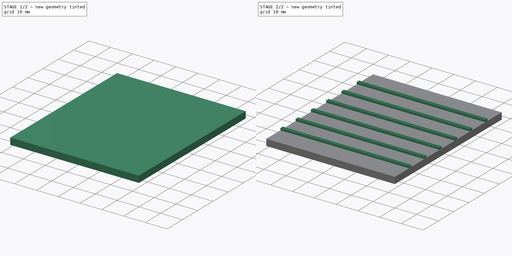
[diagram: build sequence overview — one tinted view per stage of 2, left to right]
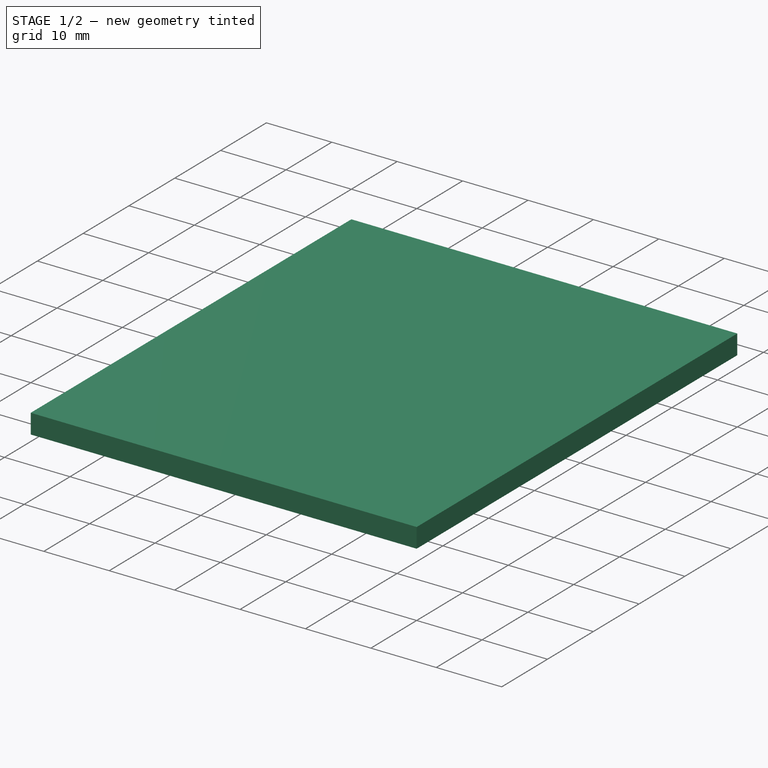
[diagram: stage 1 of 2 — iso view after this stage's code; geometry added in this stage tinted green]
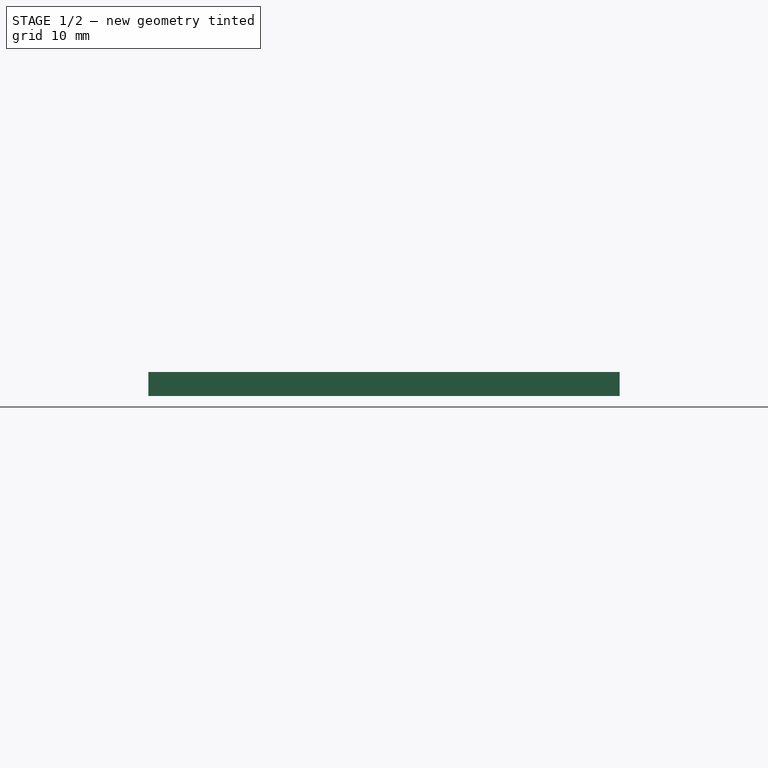
[diagram: stage 1 of 2 — front view after this stage's code; geometry added in this stage tinted green]
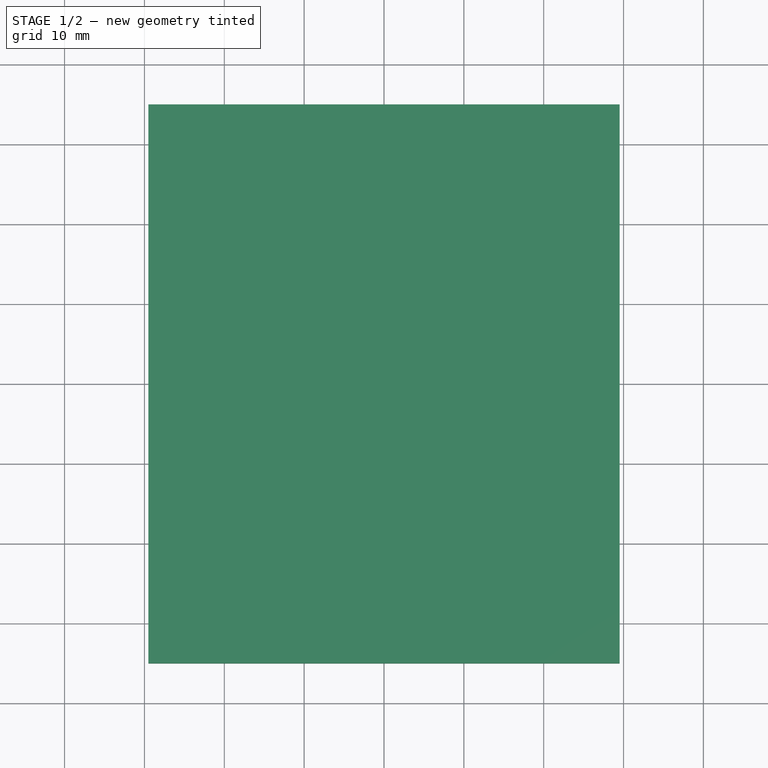
[diagram: stage 1 of 2 — top view after this stage's code; geometry added in this stage tinted green]
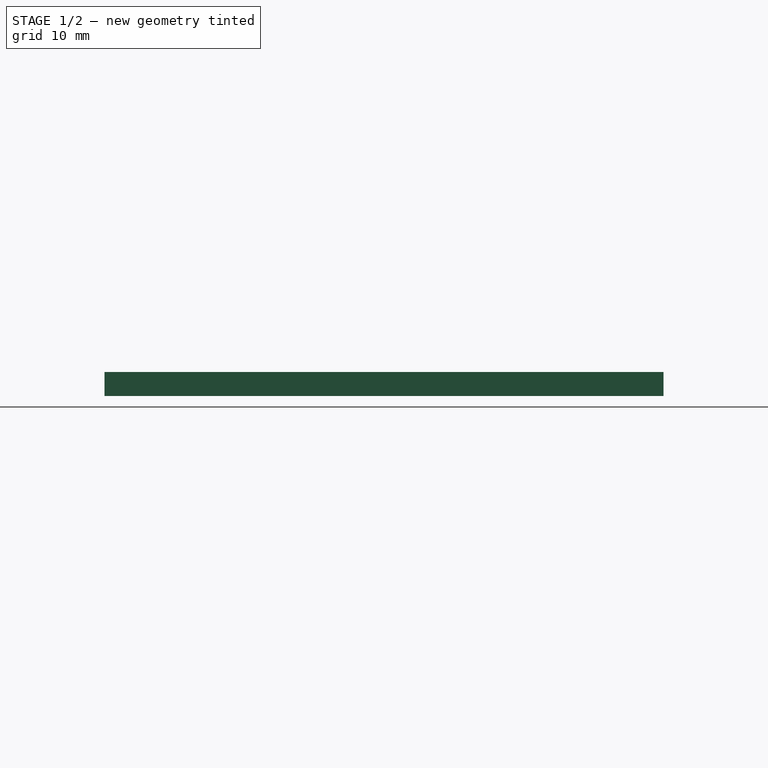
[diagram: stage 1 of 2 — right view after this stage's code; geometry added in this stage tinted green]
FCSTD DOCUMENT  (FreeCAD 0.20R29603 (Git))
Label: InterfaceBottom
License: All rights reserved
LicenseURL: http://en.wikipedia.org/wiki/All_rights_reserved
objects: Sketcher::SketchObject×2, PartDesign::Pad×2, PartDesign::Body×1
note: 7 computed .brp shape members not serialized (recipe doc carries the construction recipe); baked Part::Feature solids carry a one-line shape summary decoded from their .brp

FEATURE [Sketcher::SketchObject] Sketch
  FullyConstrained = true
  MapMode = 5
  Support = -> [XY_Plane]
  sketch-geometry (5):
    g0: LineSegment StartX=-29.5 StartY=35 StartZ=0 EndX=-29.5 EndY=-35 EndZ=0
    g1: LineSegment StartX=-29.5 StartY=-35 StartZ=0 EndX=29.5 EndY=-35 EndZ=0
    g2: LineSegment StartX=29.5 StartY=-35 StartZ=0 EndX=29.5 EndY=35 EndZ=0
    g3: LineSegment StartX=29.5 StartY=35 StartZ=0 EndX=-29.5 EndY=35 EndZ=0
    g4: GeomPoint X=0 Y=0 Z=0
  constraints (12):
    c: Coincident(g0,g1)
    c: Coincident(g1,g2)
    c: Coincident(g2,g3)
    c: Coincident(g3,g0)
    c: Horizontal(g1)
    c: Horizontal(g3)
    c: Vertical(g0)
    c: Vertical(g2)
    c: Symmetric(g1,g0,g4)
    c: Coincident(g4,g-1)
    c: DistanceX(g3,g3) = 59
    c: DistanceY(g2,g2) = 70
FEATURE [PartDesign::Pad] Pad
  Direction = (0,0,1)
  Length = 3
  Length2 = 10
  Profile = -> Sketch
  ReferenceAxis = -> Sketch [N_Axis]
  Type = 0
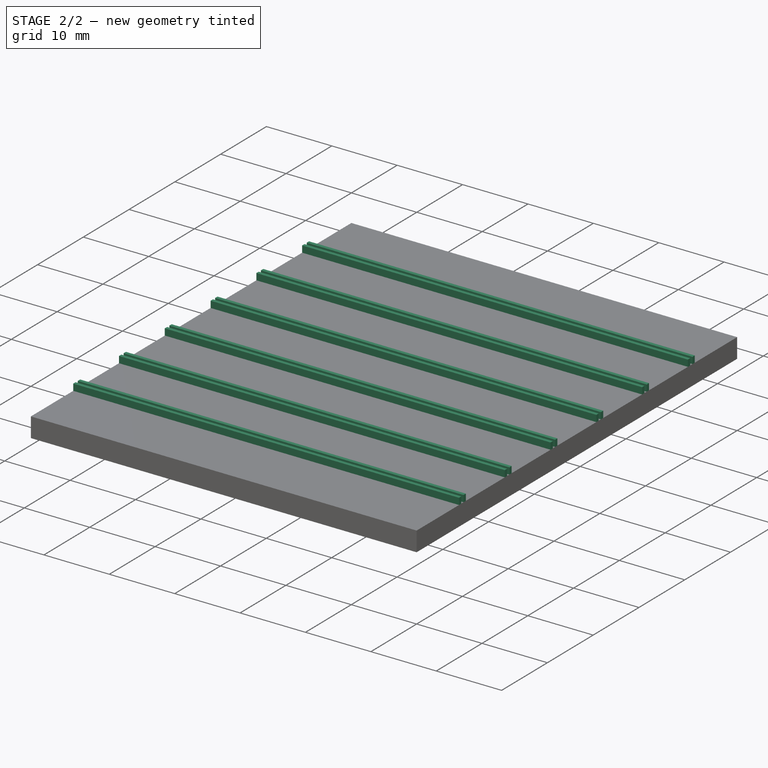
[diagram: stage 2 of 2 — iso view after this stage's code; geometry added in this stage tinted green]
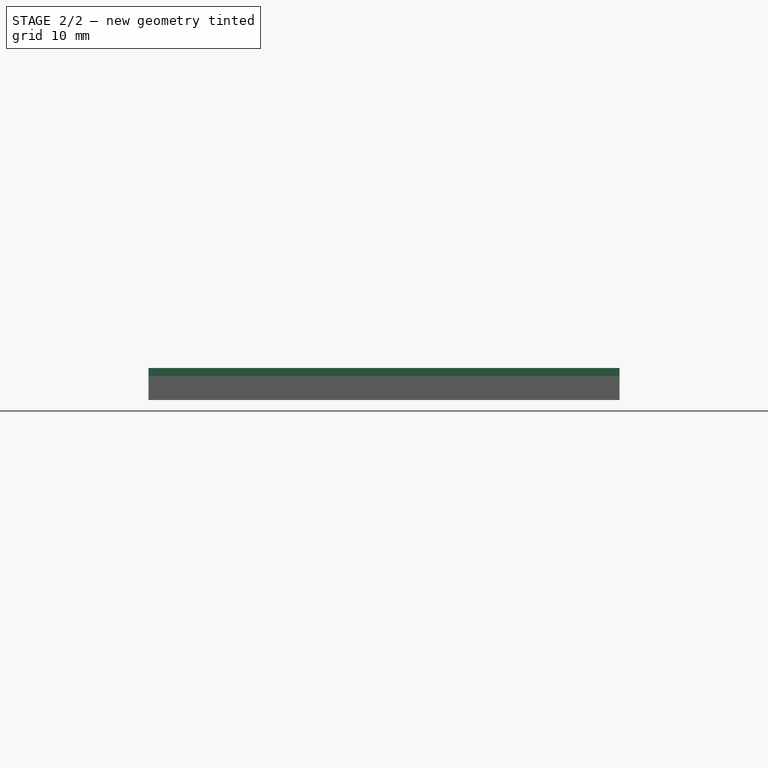
[diagram: stage 2 of 2 — front view after this stage's code; geometry added in this stage tinted green]
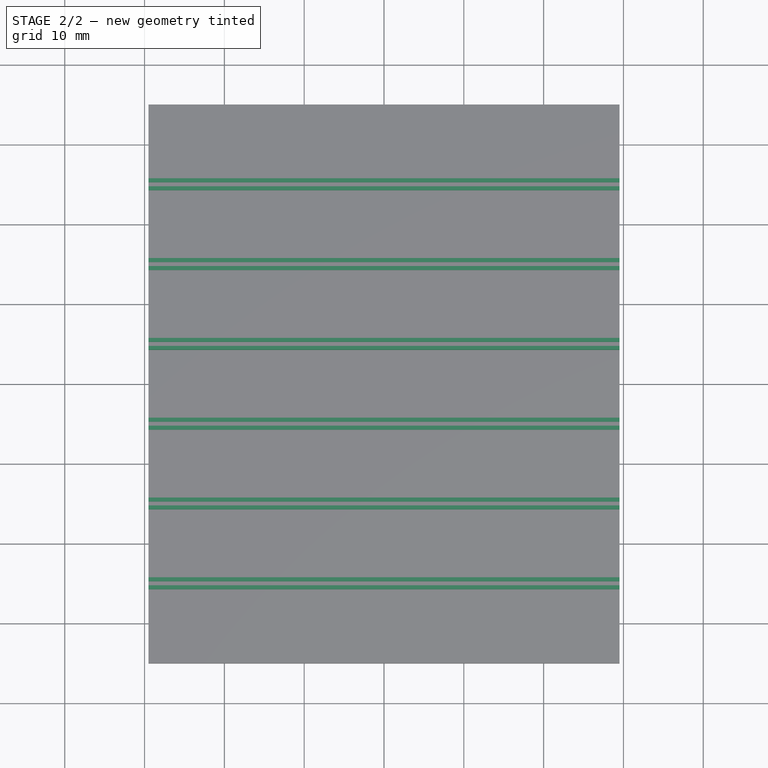
[diagram: stage 2 of 2 — top view after this stage's code; geometry added in this stage tinted green]
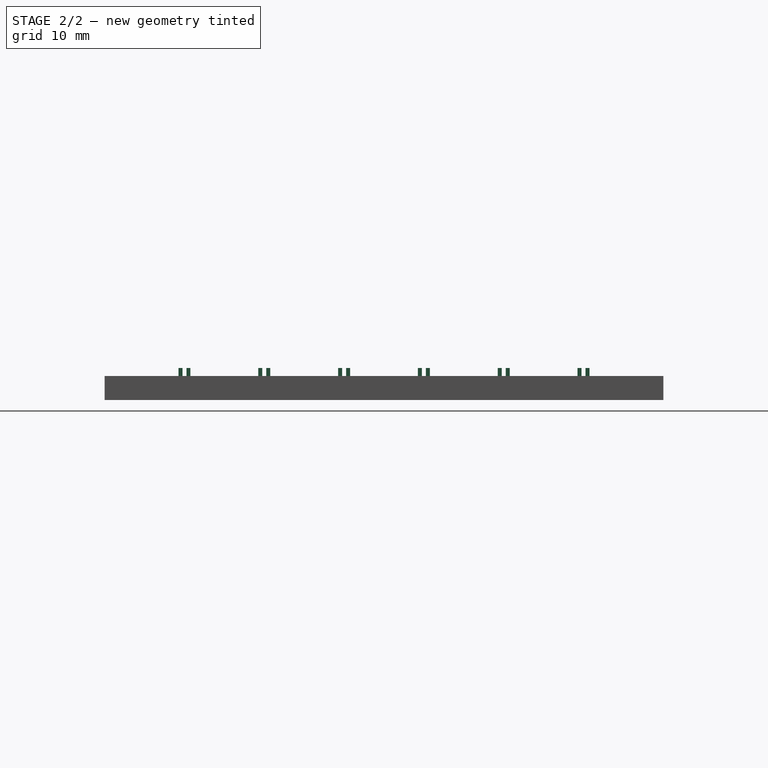
[diagram: stage 2 of 2 — right view after this stage's code; geometry added in this stage tinted green]
FEATURE [Sketcher::SketchObject] Sketch001
  FullyConstrained = true
  MapMode = 5
  Placement = pos=(0,0,3) rot=(0,0,1;0rad)
  Support = -> [Pad]
  sketch-geometry (56):
    g0: LineSegment StartX=29.5 StartY=-25.75 StartZ=0 EndX=-29.5 EndY=-25.75 EndZ=0
    g1: LineSegment StartX=-29.5 StartY=-25.75 StartZ=0 EndX=-29.5 EndY=-25.25 EndZ=0
    g2: LineSegment StartX=-29.5 StartY=-25.25 StartZ=0 EndX=29.5 EndY=-25.25 EndZ=0
    g3: LineSegment StartX=29.5 StartY=-25.25 StartZ=0 EndX=29.5 EndY=-25.75 EndZ=0
    g4: LineSegment StartX=-29.5 StartY=-24.75 StartZ=0 EndX=29.5 EndY=-24.75 EndZ=0
    g5: LineSegment StartX=29.5 StartY=-24.75 StartZ=0 EndX=29.5 EndY=-24.25 EndZ=0
    g6: LineSegment StartX=29.5 StartY=-24.25 StartZ=0 EndX=-29.5 EndY=-24.25 EndZ=0
    g7: LineSegment StartX=-29.5 StartY=-24.25 StartZ=0 EndX=-29.5 EndY=-24.75 EndZ=0
    g8: LineSegment StartX=-29.5 StartY=35 StartZ=0 EndX=-29.5 EndY=-35 EndZ=0
    g9: LineSegment StartX=29.5 StartY=35 StartZ=0 EndX=29.5 EndY=-35 EndZ=0
    g10: LineSegment StartX=-29.5 StartY=-25 StartZ=0 EndX=29.5 EndY=-25 EndZ=0
    g11: LineSegment StartX=-29.5 StartY=-15.75 StartZ=0 EndX=-29.5 EndY=-15.25 EndZ=0
    g12: LineSegment StartX=-29.5 StartY=-15.25 StartZ=0 EndX=29.5 EndY=-15.25 EndZ=0
    g13: LineSegment StartX=29.5 StartY=-15.25 StartZ=0 EndX=29.5 EndY=-15.75 EndZ=0
    g14: LineSegment StartX=-29.5 StartY=-14.75 StartZ=0 EndX=29.5 EndY=-14.75 EndZ=0
    g15: LineSegment StartX=29.5 StartY=-14.75 StartZ=0 EndX=29.5 EndY=-14.25 EndZ=0
    g16: LineSegment StartX=29.5 StartY=-14.25 StartZ=0 EndX=-29.5 EndY=-14.25 EndZ=0
    g17: LineSegment StartX=-29.5 StartY=-14.25 StartZ=0 EndX=-29.5 EndY=-14.75 EndZ=0
    g18: LineSegment StartX=-29.5 StartY=-15 StartZ=0 EndX=29.5 EndY=-15 EndZ=0
    g19: LineSegment StartX=29.5 StartY=-5.75 StartZ=0 EndX=-29.5 EndY=-5.75 EndZ=0
    g20: LineSegment StartX=-29.5 StartY=-5.75 StartZ=0 EndX=-29.5 EndY=-5.25 EndZ=0
    g21: LineSegment StartX=-29.5 StartY=-5.25 StartZ=0 EndX=29.5 EndY=-5.25 EndZ=0
    g22: LineSegment StartX=29.5 StartY=-5.25 StartZ=0 EndX=29.5 EndY=-5.75 EndZ=0
    g23: LineSegment StartX=-29.5 StartY=-4.75 StartZ=0 EndX=29.5 EndY=-4.75 EndZ=0
    g24: LineSegment StartX=29.5 StartY=-4.75 StartZ=0 EndX=29.5 EndY=-4.25 EndZ=0
    g25: LineSegment StartX=29.5 StartY=-4.25 StartZ=0 EndX=-29.5 EndY=-4.25 EndZ=0
    g26: LineSegment StartX=-29.5 StartY=-4.25 StartZ=0 EndX=-29.5 EndY=-4.75 EndZ=0
    g27: LineSegment StartX=-29.5 StartY=-5 StartZ=0 EndX=29.5 EndY=-5 EndZ=0
    g28: LineSegment StartX=-29.5 StartY=-15.75 StartZ=0 EndX=29.5 EndY=-15.75 EndZ=0
    g29: LineSegment StartX=29.5 StartY=4.25 StartZ=0 EndX=-29.5 EndY=4.25 EndZ=0
    g30: LineSegment StartX=-29.5 StartY=4.25 StartZ=0 EndX=-29.5 EndY=4.75 EndZ=0
    g31: LineSegment StartX=-29.5 StartY=4.75 StartZ=0 EndX=29.5 EndY=4.75 EndZ=0
    g32: LineSegment StartX=29.5 StartY=4.75 StartZ=0 EndX=29.5 EndY=4.25 EndZ=0
    g33: LineSegment StartX=-29.5 StartY=5.25 StartZ=0 EndX=29.5 EndY=5.25 EndZ=0
    g34: LineSegment StartX=29.5 StartY=5.25 StartZ=0 EndX=29.5 EndY=5.75 EndZ=0
    g35: LineSegment StartX=29.5 StartY=5.75 StartZ=0 EndX=-29.5 EndY=5.75 EndZ=0
    g36: LineSegment StartX=-29.5 StartY=5.75 StartZ=0 EndX=-29.5 EndY=5.25 EndZ=0
    g37: LineSegment StartX=-29.5 StartY=5 StartZ=0 EndX=29.5 EndY=5 EndZ=0
    g38: LineSegment StartX=29.5 StartY=14.25 StartZ=0 EndX=-29.5 EndY=14.25 EndZ=0
    g39: LineSegment StartX=-29.5 StartY=14.25 StartZ=0 EndX=-29.5 EndY=14.75 EndZ=0
    g40: LineSegment StartX=-29.5 StartY=14.75 StartZ=0 EndX=29.5 EndY=14.75 EndZ=0
    g41: LineSegment StartX=29.5 StartY=14.75 StartZ=0 EndX=29.5 EndY=14.25 EndZ=0
    g42: LineSegment StartX=-29.5 StartY=15.25 StartZ=0 EndX=29.5 EndY=15.25 EndZ=0
    g43: LineSegment StartX=29.5 StartY=15.25 StartZ=0 EndX=29.5 EndY=15.75 EndZ=0
    g44: LineSegment StartX=29.5 StartY=15.75 StartZ=0 EndX=-29.5 EndY=15.75 EndZ=0
    g45: LineSegment StartX=-29.5 StartY=15.75 StartZ=0 EndX=-29.5 EndY=15.25 EndZ=0
    g46: LineSegment StartX=-29.5 StartY=15 StartZ=0 EndX=29.5 EndY=15 EndZ=0
    g47: LineSegment StartX=29.5 StartY=24.25 StartZ=0 EndX=-29.5 EndY=24.25 EndZ=0
    g48: LineSegment StartX=-29.5 StartY=24.25 StartZ=0 EndX=-29.5 EndY=24.75 EndZ=0
    g49: LineSegment StartX=-29.5 StartY=24.75 StartZ=0 EndX=29.5 EndY=24.75 EndZ=0
    g50: LineSegment StartX=29.5 StartY=24.75 StartZ=0 EndX=29.5 EndY=24.25 EndZ=0
    g51: LineSegment StartX=-29.5 StartY=25.25 StartZ=0 EndX=29.5 EndY=25.25 EndZ=0
    g52: LineSegment StartX=29.5 StartY=25.25 StartZ=0 EndX=29.5 EndY=25.75 EndZ=0
    g53: LineSegment StartX=29.5 StartY=25.75 StartZ=0 EndX=-29.5 EndY=25.75 EndZ=0
    g54: LineSegment StartX=-29.5 StartY=25.75 StartZ=0 EndX=-29.5 EndY=25.25 EndZ=0
    g55: LineSegment StartX=-29.5 StartY=25 StartZ=0 EndX=29.5 EndY=25 EndZ=0
  constraints (162):
    c: Coincident(g0,g1)
    c: Coincident(g1,g2)
    c: Coincident(g2,g3)
    c: Coincident(g3,g0)
    c: Horizontal(g0)
    c: DistanceY(g3,g3) = 0.5
    c: Coincident(g4,g5)
    c: Coincident(g5,g6)
    c: Coincident(g6,g7)
    c: Coincident(g7,g4)
    c: Equal(g7,g1)
    c: DistanceY(g1,g4) = 0.5
    c: Symmetric(g8,g8,g-1)
    c: DistanceY(g8,g8) = 70
    c: Symmetric(g9,g8,g-2)
    c: DistanceX(g8,g9) = 59
    c: Symmetric(g9,g8,g-2)
    c: PointOnObject(g0,g9)
    c: PointOnObject(g2,g9)
    c: PointOnObject(g4,g9)
    c: PointOnObject(g5,g9)
    c: PointOnObject(g0,g8)
    c: PointOnObject(g4,g8)
    c: PointOnObject(g6,g8)
    c: Horizontal(g2)
    c: Horizontal(g4)
    c: Horizontal(g6)
    c: PointOnObject(g10,g8)
    c: PointOnObject(g10,g9)
    c: Horizontal(g10)
    c: DistanceY(g9,g10) = 10
    c: Symmetric(g1,g4,g10)
    c: Coincident(g11,g12)
    c: Coincident(g12,g13)
    c: Equal(g3,g13) = 0.5
    c: Coincident(g14,g15)
    c: Coincident(g15,g16)
    c: Coincident(g16,g17)
    c: Coincident(g17,g14)
    c: DistanceY(g11,g14) = 0.5
    c: Horizontal(g12)
    c: Horizontal(g14)
    c: Horizontal(g16)
    c: Horizontal(g18)
    c: Symmetric(g11,g14,g18)
    c: PointOnObject(g18,g8)
    c: PointOnObject(g11,g8)
    c: PointOnObject(g16,g8)
    c: Vertical(g15,g14)
    c: Vertical(g14,g18)
    c: Vertical(g18,g12)
    c: Vertical(g12,g13)
    c: PointOnObject(g18,g9)
    c: DistanceY(g8,g18) = 20
    c: Coincident(g19,g20)
    c: Coincident(g20,g21)
    c: Coincident(g21,g22)
    c: Coincident(g22,g19)
    c: Horizontal(g19)
    c: Coincident(g23,g24)
    c: Coincident(g24,g25)
    c: Coincident(g25,g26)
    c: Coincident(g26,g23)
    c: DistanceY(g20,g23) = 0.5
    c: Horizontal(g21)
    c: Horizontal(g23)
    c: Horizontal(g25)
    c: Horizontal(g27)
    c: Vertical(g24,g23)
    c: Vertical(g23,g27)
    c: Vertical(g27,g21)
    c: Vertical(g21,g19)
    c: PointOnObject(g27,g8)
    c: PointOnObject(g27,g9)
    c: DistanceY(g27) = -5
    c: DistanceY(g23,g25) = 0.5
    c: Vertical(g23,g25)
    c: Vertical(g25,g27)
    c: Symmetric(g23,g20,g27)
    c: Symmetric(g19,g25,g27)
    c: Symmetric(g11,g16,g18)
    c: DistanceY(g17,g17) = 0.5
    c: Coincident(g28,g11)
    c: Coincident(g28,g13)
    c: Coincident(g29,g30)
    c: Coincident(g30,g31)
    c: Coincident(g31,g32)
    c: Coincident(g32,g29)
    c: Horizontal(g29)
    c: Coincident(g33,g34)
    c: Coincident(g34,g35)
    c: Coincident(g35,g36)
    c: Coincident(g36,g33)
    c: DistanceY(g30,g33) = 0.5
    c: Horizontal(g31)
    c: Horizontal(g33)
    c: Horizontal(g35)
    c: Horizontal(g37)
    c: Vertical(g34,g33)
    c: Vertical(g33,g37)
    c: Vertical(g37,g31)
    c: Vertical(g31,g29)
    c: DistanceY(g33,g35) = 0.5
    c: Vertical(g33,g35)
    c: Vertical(g35,g37)
    c: Symmetric(g33,g30,g37)
    c: Symmetric(g29,g35,g37)
    c: PointOnObject(g37,g8)
    c: PointOnObject(g37,g9)
    c: DistanceY(g37) = 5
    c: Coincident(g38,g39)
    c: Coincident(g39,g40)
    c: Coincident(g40,g41)
    c: Coincident(g41,g38)
    c: Horizontal(g38)
    c: Coincident(g42,g43)
    c: Coincident(g43,g44)
    c: Coincident(g44,g45)
    c: Coincident(g45,g42)
    c: DistanceY(g39,g42) = 0.5
    c: Horizontal(g40)
    c: Horizontal(g42)
    c: Horizontal(g44)
    c: Horizontal(g46)
    c: Vertical(g43,g42)
    c: Vertical(g42,g46)
    c: Vertical(g46,g40)
    c: Vertical(g40,g38)
    c: DistanceY(g42,g44) = 0.5
    c: Vertical(g42,g44)
    c: Vertical(g44,g46)
    c: Symmetric(g42,g39,g46)
    c: Symmetric(g38,g44,g46)
    c: PointOnObject(g46,g8)
    c: PointOnObject(g46,g9)
    c: DistanceY(g46) = 15
    c: Coincident(g47,g48)
    c: Coincident(g48,g49)
    c: Coincident(g49,g50)
    c: Coincident(g50,g47)
    c: Horizontal(g47)
    c: Coincident(g51,g52)
    c: Coincident(g52,g53)
    c: Coincident(g53,g54)
    c: Coincident(g54,g51)
    c: DistanceY(g48,g51) = 0.5
    c: Horizontal(g49)
    c: Horizontal(g51)
    c: Horizontal(g53)
    c: Horizontal(g55)
    c: Vertical(g52,g51)
    c: Vertical(g51,g55)
    c: Vertical(g55,g49)
    c: Vertical(g49,g47)
    c: DistanceY(g51,g53) = 0.5
    c: Vertical(g51,g53)
    c: Vertical(g53,g55)
    c: Symmetric(g51,g48,g55)
    c: Symmetric(g47,g53,g55)
    c: PointOnObject(g55,g8)
    c: PointOnObject(g55,g9)
    c: DistanceY(g55) = 25
FEATURE [PartDesign::Pad] Pad001
  BaseFeature = -> Pad
  Direction = (0,0,1)
  Length = 1
  Length2 = 10
  Profile = -> Sketch001
  ReferenceAxis = -> Sketch001 [N_Axis]
  Type = 0
FEATURE [PartDesign::Body] Body
  Group = -> [Sketch,Pad,Sketch001,Pad001]
  Origin = -> Origin
  Tip = -> Pad001
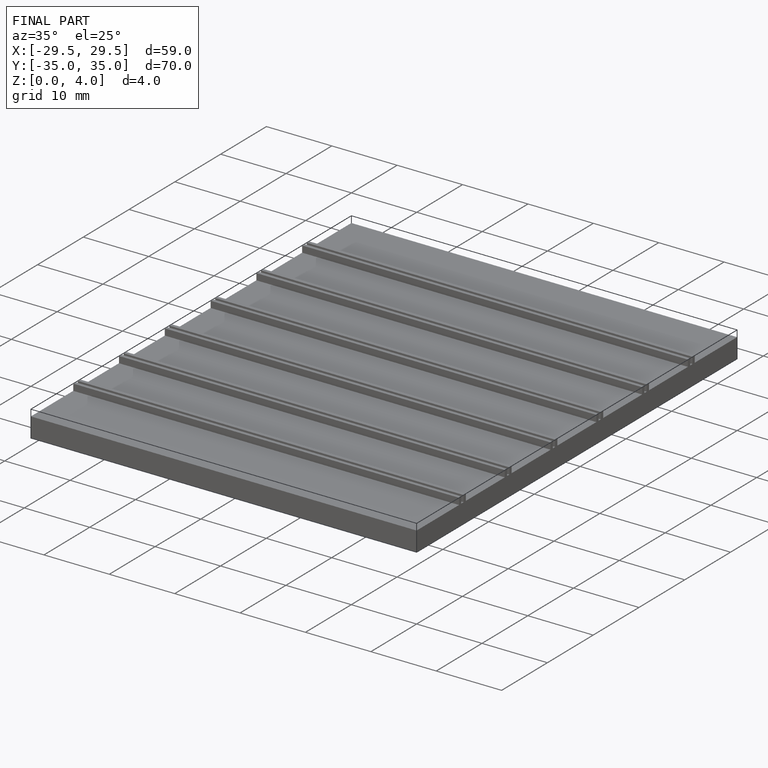
[diagram: finished part — iso view with bounding-box wireframe]
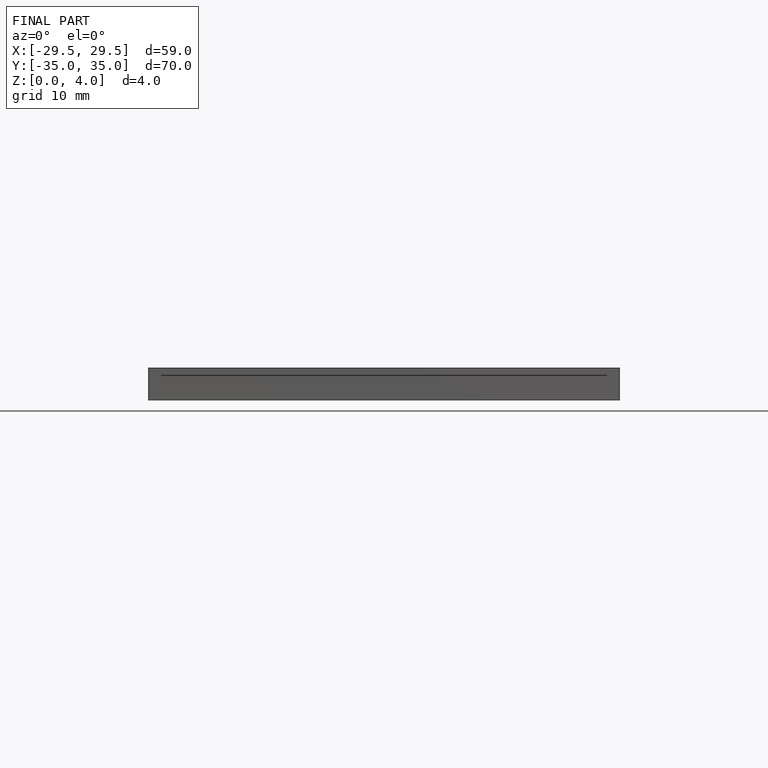
[diagram: finished part — front view with bounding-box wireframe]
